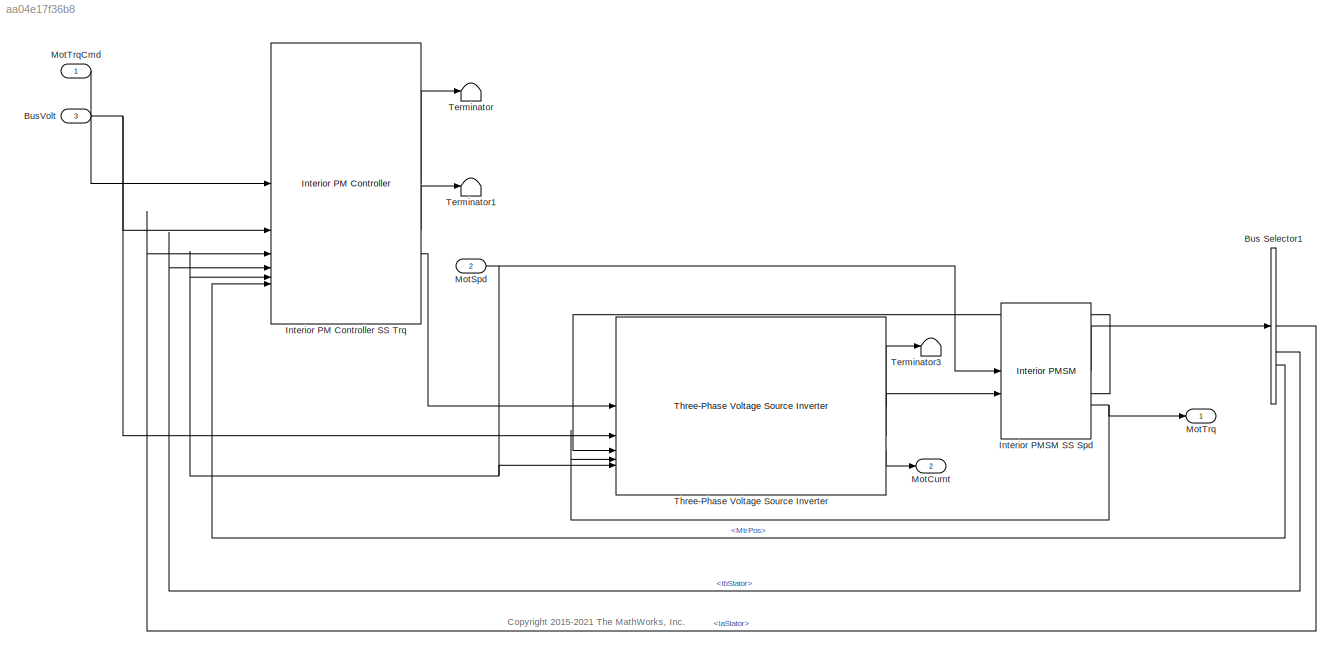
MODEL slx_aa04e17f36b8
KIND model
CONFIG AbsTol = auto
CONFIG EnableMultiTasking = off
CONFIG FixedStep = auto
CONFIG MaxStep = auto
CONFIG MinStep = auto
CONFIG RelTol = 1e-3
CONFIG SampleTimeConstraint = Unconstrained
CONFIG SolverName = VariableStepAuto
CONFIG StartTime = 0.0
CONFIG StopTime = 10.0
WORKSPACE source: mxarray member
WORKSPACE EV_current = 200
WORKSPACE EV_motion = [20 4 0.8]
WORKSPACE EV_sf = 2000
WORKSPACE Fs = 0
WORKSPACE Fv = 0.0025
WORKSPACE Jcomp = 0.0227
WORKSPACE Ki = 25.1327
WORKSPACE Kisa = 346.6583
WORKSPACE Kp_d = 0.077049
WORKSPACE Kp_q = 0.1541
WORKSPACE Ksa = 85.4316
WORKSPACE Ksf = 1996.2651
WORKSPACE Ld = 6.13138564528e-05
WORKSPACE Ldq = [0.00075852 0.00084286]
WORKSPACE Lq = 0.000122627712906
WORKSPACE Mechanical = [0.0227 0.0025 0]
WORKSPACE P = 4
WORKSPACE PolePairs = 4
WORKSPACE Rs = 0.02
WORKSPACE T_max = 450
WORKSPACE T_mtpa = [0 42.1986572825 85.2083176897 129.729081531 176.299639273 225.306651971 277.019503371 331.625177598 389.25482581 450.002001304]
WORKSPACE ba = 3.4029
WORKSPACE id_mtpa = [0 -7.80314458768 -30.092823648 -64.186681647 -107.097717515 -156.321290228 -210.017144052 -266.906008079 -326.111998186 -387.032483343]
WORKSPACE idq0 = [0 0]
WORKSPACE idq_limits = [-387.027355555 779.385063397 870.190353311]
WORKSPACE iq_mtpa = [0 96.3724280977 191.019783835 282.872542968 371.626993516 457.46803527 540.777238675 621.964104296 701.396562769 779.382517017]
WORKSPACE lambda_pm = 0.0725
WORKSPACE mechanical = [0.0227 0.0025 0]
WORKSPACE omega_init = 0
WORKSPACE theta_init = 0
BLOCK [BusSelector] Bus Selector1
  OutputSignals = IaStator,IbStator,MtrPos
BLOCK [Inport] BusVolt
  Port = 3
BLOCK [Reference] Interior PM Controller SS Trq  REF=autolibmotorctrlr/Interior PM Controller
  SourceBlock = autolibmotorctrlr/Interior PM Controller
  SourceType = Interior PM Controller
BLOCK [Reference] Interior PMSM SS Spd  REF=autolibpmsminterior/Interior PMSM
  LibrarySourceBlock = autolibemachines/Interior PMSM
  SourceBlock = autolibpmsminterior/Interior PMSM
  SourceType = Interior PMSM
BLOCK [Outport] MotCurnt
  Port = 2
  VectorParamsAs1DForOutWhenUnconnected = off
BLOCK [Inport] MotSpd
  Port = 2
BLOCK [Outport] MotTrq
  VectorParamsAs1DForOutWhenUnconnected = off
BLOCK [Inport] MotTrqCmd
BLOCK [Terminator] Terminator
BLOCK [Terminator] Terminator1
BLOCK [Terminator] Terminator3
BLOCK [Reference] Three-Phase Voltage Source Inverter  REF=autolibinverter/Three-Phase Voltage Source Inverter
  SourceBlock = autolibinverter/Three-Phase Voltage Source Inverter
  SourceType = Three-Phase Voltage Source Inverter
ANNOTATION (root): <copyright redacted>
LINE Bus Selector1:1 -> Interior PM Controller SS Trq:3
LINE Bus Selector1:2 -> Interior PM Controller SS Trq:4
LINE Bus Selector1:3 -> Interior PM Controller SS Trq:6
NET BusVolt:1 -> Interior PM Controller SS Trq:2, Three-Phase Voltage Source Inverter:2
LINE Interior PM Controller SS Trq:1 -> Terminator:1
LINE Interior PM Controller SS Trq:2 -> Terminator1:1
LINE Interior PM Controller SS Trq:3 -> Three-Phase Voltage Source Inverter:1
LINE Interior PMSM SS Spd:1 -> Bus Selector1:1
LINE Interior PMSM SS Spd:2 -> Three-Phase Voltage Source Inverter:3
NET Interior PMSM SS Spd:3 -> MotTrq:1, Three-Phase Voltage Source Inverter:4
NET MotSpd:1 -> Interior PM Controller SS Trq:5, Interior PMSM SS Spd:1, Three-Phase Voltage Source Inverter:5
LINE MotTrqCmd:1 -> Interior PM Controller SS Trq:1
LINE Three-Phase Voltage Source Inverter:1 -> Terminator3:1
LINE Three-Phase Voltage Source Inverter:2 -> Interior PMSM SS Spd:2
LINE Three-Phase Voltage Source Inverter:3 -> MotCurnt:1
note: NET lines group one-source signal fan-out (src -> all destinations, sorted); 1:1 wires keep LINE
